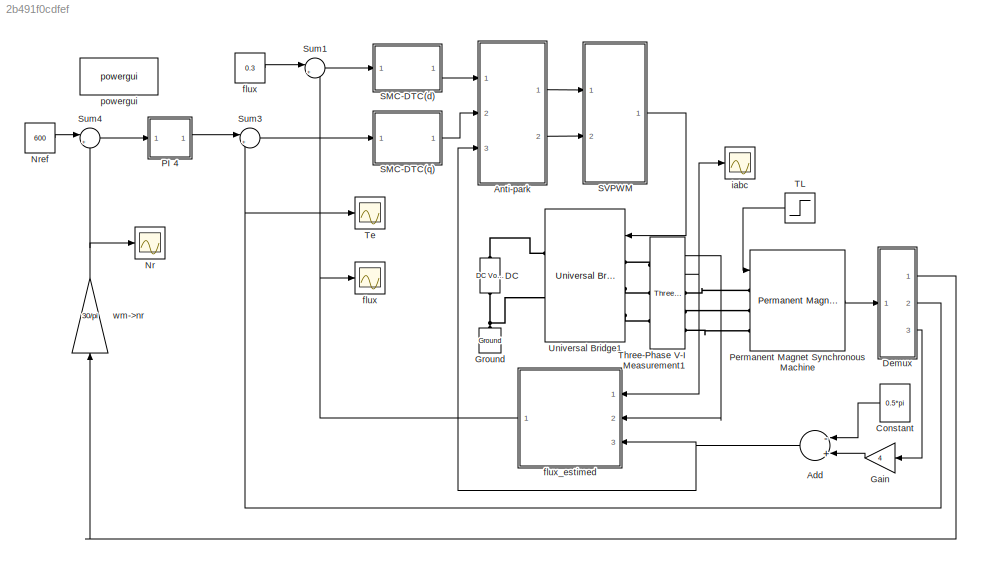
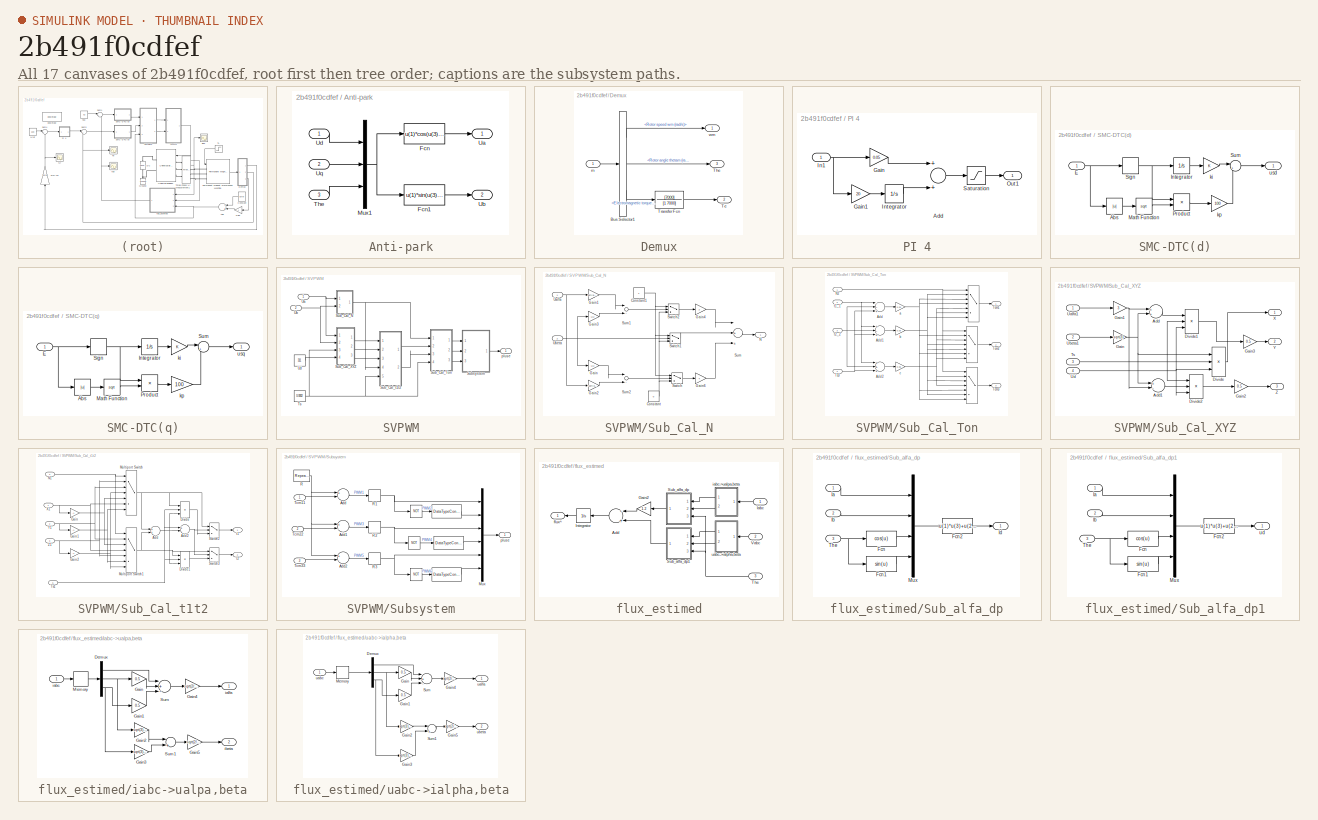
[diagram: thumbnail index - all 17 canvases of the model, root first then tree order]
MODEL slx_2b491f0cdfef
KIND model
BLOCK [Sum] Add
  InputSameDT = off
  Inputs = -+
  OutDataTypeStr = Inherit: Inherit via internal rule
  Ports = [2, 1]
  SaturateOnIntegerOverflow = off
BLOCK [SubSystem] Anti-park
  Ports = [3, 2]
  RequestExecContextInheritance = off
BLOCK [Fcn] Anti-park/Fcn
  Expr = u(1)*cos(u(3))-u(2)*sin(u(3))
BLOCK [Fcn] Anti-park/Fcn1
  Expr = u(1)*sin(u(3))+u(2)*cos(u(3))
BLOCK [Mux] Anti-park/Mux1
  DisplayOption = bar
  Inputs = 3
  Ports = [3, 1]
BLOCK [Inport] Anti-park/The
  IconDisplay = Port number
  Port = 3
BLOCK [Outport] Anti-park/Ua
  IconDisplay = Port number
BLOCK [Outport] Anti-park/Ub
  IconDisplay = Port number
  Port = 2
BLOCK [Inport] Anti-park/Ud
  IconDisplay = Port number
BLOCK [Inport] Anti-park/Uq
  IconDisplay = Port number
  Port = 2
BLOCK [Constant] Constant
  Value = 0.5*pi
BLOCK [Reference] DC  REF=powerlib/Electrical
Sources/DC Voltage Source
  Amplitude = 311
  Measurements = None
  Ports = [0, 0, 0, 0, 0, 1, 1]
  SourceBlock = powerlib/Electrical\nSources/DC Voltage Source
  SourceType = DC Voltage Source
BLOCK [SubSystem] Demux
  Ports = [1, 3]
  RequestExecContextInheritance = off
BLOCK [BusSelector] Demux/Bus Selector1
  OutputSignals = Rotor speed wm (rad/s),Rotor angle thetam (rad),Electromagnetic torque Te (N*m)
  Ports = [1, 3]
BLOCK [Outport] Demux/Te
  IconDisplay = Port number
  Port = 2
BLOCK [Outport] Demux/The
  IconDisplay = Port number
  Port = 3
BLOCK [TransferFcn] Demux/Transfer Fcn
  Denominator = [1 7000]
  Numerator = [7000]
BLOCK [Inport] Demux/m
  IconDisplay = Port number
BLOCK [Outport] Demux/wm
  IconDisplay = Port number
BLOCK [Gain] Gain
  Gain = 4
  OutDataTypeStr = Inherit: Inherit via internal rule
  ParamDataTypeStr = Inherit: Inherit via internal rule
  SaturateOnIntegerOverflow = off
BLOCK [Reference] Ground  REF=powerlib/Elements/Ground
  LConnTagsString = a
  Ports = [0, 0, 0, 0, 0, 1]
  SourceBlock = powerlib/Elements/Ground
  SourceType = Ground
BLOCK [Scope] Nr
  DataFormat = StructureWithTime
  Floating = off
  LimitDataPoints = off
  NumInputPorts = 1
  Ports = [1]
  SampleInput = on
  SampleTime = 0
  SaveName = wm
  SaveToWorkspace = on
  ShowLegends = off
  TickLabels = on
  TimeRange = 0.3
  YMax = 605
  YMin = 575
  ZoomMode = yonly
BLOCK [Constant] Nref
  Value = 600
BLOCK [SubSystem] PI 4
  Ports = [1, 1]
  RequestExecContextInheritance = off
BLOCK [Sum] PI 4/Add
  InputSameDT = off
  OutDataTypeStr = Inherit: Inherit via internal rule
  Ports = [2, 1]
  SaturateOnIntegerOverflow = off
BLOCK [Gain] PI 4/Gain
  Gain = 0.05
  OutDataTypeStr = Inherit: Inherit via internal rule
  ParamDataTypeStr = Inherit: Inherit via internal rule
  SaturateOnIntegerOverflow = off
BLOCK [Gain] PI 4/Gain1
  Gain = 20
  OutDataTypeStr = Inherit: Inherit via internal rule
  ParamDataTypeStr = Inherit: Inherit via internal rule
  SaturateOnIntegerOverflow = off
BLOCK [Inport] PI 4/In1
  IconDisplay = Port number
BLOCK [Integrator] PI 4/Integrator
  Ports = [1, 1]
BLOCK [Outport] PI 4/Out1
  IconDisplay = Port number
BLOCK [Saturate] PI 4/Saturation
  InputPortMap = u0
  LowerLimit = -50
  Ports = [1, 1]
  UpperLimit = 50
BLOCK [Reference] Permanent Magnet Synchronous Machine  REF=powerlib/Machines/Permanent Magnet
Synchronous Machine
  Flat = 120
  Flux = 0.175
  FluxDistribution = Sinusoidal
  Inductance = 8.5e-3
  InitialConditions = [0,0, 0,0]
  InitialConditions5ph = [0 0 0 0 0 0]
  La = 0.000835
  MachineConstant = Torque Constant (N.m / A_peak)
  MeasurementBus = off
  Mechanical = [0.0008 0 4]
  MechanicalLoad = Torque Tm
  NbPhases = 3
  PolePairs = 4
  Ports = [1, 1, 0, 0, 0, 3]
  PresetModel = No
  RefAngle = 90 degrees behind phase A axis (modified Park)
  Resistance = 1.2
  RotorType = Salient-pole
  ShowDetailedParameters = on
  SourceBlock = powerlib/Machines/Permanent Magnet\nSynchronous Machine
  SourceType = Permanent Magnet Synchronous Machine
  TorqueCst = 1.05
  TsBlock = -1
  TsPowergui = 0
  VoltageCst = 126.966
  dqInductances = [8.5e-3,8.5e-3]
BLOCK [SubSystem] SMC-DTC(d)
  Ports = [1, 1]
  RequestExecContextInheritance = off
BLOCK [Abs] SMC-DTC(d)/Abs
  SaturateOnIntegerOverflow = off
BLOCK [Inport] SMC-DTC(d)/E
  IconDisplay = Port number
BLOCK [Integrator] SMC-DTC(d)/Integrator
  Ports = [1, 1]
BLOCK [Math] SMC-DTC(d)/Math Function
  Operator = sqrt
  Ports = [1, 1]
BLOCK [Product] SMC-DTC(d)/Product
  InputSameDT = off
  OutDataTypeStr = Inherit: Inherit via internal rule
  Ports = [2, 1]
  SaturateOnIntegerOverflow = off
BLOCK [Signum] SMC-DTC(d)/Sign
BLOCK [Sum] SMC-DTC(d)/Sum
  IconShape = round
  InputSameDT = off
  Inputs = |++
  OutDataTypeStr = Inherit: Inherit via internal rule
  Ports = [2, 1]
  SaturateOnIntegerOverflow = off
BLOCK [Gain] SMC-DTC(d)/ki
  OutDataTypeStr = Inherit: Inherit via internal rule
  ParamDataTypeStr = Inherit: Inherit via internal rule
  SaturateOnIntegerOverflow = off
BLOCK [Gain] SMC-DTC(d)/kp
  Gain = 100
  OutDataTypeStr = Inherit: Inherit via internal rule
  ParamDataTypeStr = Inherit: Inherit via internal rule
  SaturateOnIntegerOverflow = off
BLOCK [Outport] SMC-DTC(d)/usd
  IconDisplay = Port number
BLOCK [SubSystem] SMC-DTC(q)
  Ports = [1, 1]
  RequestExecContextInheritance = off
BLOCK [Abs] SMC-DTC(q)/Abs
  SaturateOnIntegerOverflow = off
BLOCK [Inport] SMC-DTC(q)/E
  IconDisplay = Port number
BLOCK [Integrator] SMC-DTC(q)/Integrator
  Ports = [1, 1]
BLOCK [Math] SMC-DTC(q)/Math Function
  Operator = sqrt
  Ports = [1, 1]
BLOCK [Product] SMC-DTC(q)/Product
  InputSameDT = off
  OutDataTypeStr = Inherit: Inherit via internal rule
  Ports = [2, 1]
  SaturateOnIntegerOverflow = off
BLOCK [Signum] SMC-DTC(q)/Sign
BLOCK [Sum] SMC-DTC(q)/Sum
  IconShape = round
  InputSameDT = off
  Inputs = |++
  OutDataTypeStr = Inherit: Inherit via internal rule
  Ports = [2, 1]
  SaturateOnIntegerOverflow = off
BLOCK [Gain] SMC-DTC(q)/ki
  OutDataTypeStr = Inherit: Inherit via internal rule
  ParamDataTypeStr = Inherit: Inherit via internal rule
  SaturateOnIntegerOverflow = off
BLOCK [Gain] SMC-DTC(q)/kp
  Gain = 100
  OutDataTypeStr = Inherit: Inherit via internal rule
  ParamDataTypeStr = Inherit: Inherit via internal rule
  SaturateOnIntegerOverflow = off
BLOCK [Outport] SMC-DTC(q)/usq
  IconDisplay = Port number
BLOCK [SubSystem] SVPWM
  Ports = [2, 1]
  RequestExecContextInheritance = off
BLOCK [SubSystem] SVPWM/Sub_Cal_N
  Ports = [2, 1]
  RequestExecContextInheritance = off
BLOCK [Constant] SVPWM/Sub_Cal_N/Constant
  Value = 0
BLOCK [Constant] SVPWM/Sub_Cal_N/Constant1
BLOCK [Gain] SVPWM/Sub_Cal_N/Gain
  Gain = -1/2
  OutDataTypeStr = Inherit: Inherit via internal rule
  ParamDataTypeStr = Inherit: Inherit via internal rule
  SaturateOnIntegerOverflow = off
BLOCK [Gain] SVPWM/Sub_Cal_N/Gain1
  Gain = sqrt(3)/2
  OutDataTypeStr = Inherit: Inherit via internal rule
  ParamDataTypeStr = Inherit: Inherit via internal rule
  SaturateOnIntegerOverflow = off
BLOCK [Gain] SVPWM/Sub_Cal_N/Gain2
  Gain = -sqrt(3)/2
  OutDataTypeStr = Inherit: Inherit via internal rule
  ParamDataTypeStr = Inherit: Inherit via internal rule
  SaturateOnIntegerOverflow = off
BLOCK [Gain] SVPWM/Sub_Cal_N/Gain3
  Gain = -1/2
  OutDataTypeStr = Inherit: Inherit via internal rule
  ParamDataTypeStr = Inherit: Inherit via internal rule
  SaturateOnIntegerOverflow = off
BLOCK [Gain] SVPWM/Sub_Cal_N/Gain4
  Gain = 2
  OutDataTypeStr = Inherit: Inherit via internal rule
  ParamDataTypeStr = Inherit: Inherit via internal rule
  SaturateOnIntegerOverflow = off
BLOCK [Gain] SVPWM/Sub_Cal_N/Gain6
  Gain = 4
  OutDataTypeStr = Inherit: Inherit via internal rule
  ParamDataTypeStr = Inherit: Inherit via internal rule
  SaturateOnIntegerOverflow = off
BLOCK [Outport] SVPWM/Sub_Cal_N/N
  IconDisplay = Port number
BLOCK [Sum] SVPWM/Sub_Cal_N/Sum
  InputSameDT = off
  Inputs = |+++
  OutDataTypeStr = Inherit: Inherit via internal rule
  Ports = [3, 1]
  SaturateOnIntegerOverflow = off
BLOCK [Sum] SVPWM/Sub_Cal_N/Sum1
  InputSameDT = off
  Inputs = |++
  OutDataTypeStr = Inherit: Inherit via internal rule
  Ports = [2, 1]
  SaturateOnIntegerOverflow = off
BLOCK [Sum] SVPWM/Sub_Cal_N/Sum2
  InputSameDT = off
  Inputs = |++
  OutDataTypeStr = Inherit: Inherit via internal rule
  Ports = [2, 1]
  SaturateOnIntegerOverflow = off
BLOCK [Switch] SVPWM/Sub_Cal_N/Switch
  InputSameDT = off
  SaturateOnIntegerOverflow = off
BLOCK [Switch] SVPWM/Sub_Cal_N/Switch1
  InputSameDT = off
  SaturateOnIntegerOverflow = off
BLOCK [Switch] SVPWM/Sub_Cal_N/Switch2
  InputSameDT = off
  SaturateOnIntegerOverflow = off
BLOCK [Inport] SVPWM/Sub_Cal_N/Ualfa
  IconDisplay = Port number
BLOCK [Inport] SVPWM/Sub_Cal_N/Ubeta
  IconDisplay = Port number
  Port = 2
BLOCK [SubSystem] SVPWM/Sub_Cal_Ton
  Ports = [4, 3]
  RequestExecContextInheritance = off
BLOCK [MultiPortSwitch] SVPWM/Sub_Cal_Ton/ 
  InputSameDT = off
  Inputs = 6
  Ports = [7, 1]
  SaturateOnIntegerOverflow = off
BLOCK [MultiPortSwitch] SVPWM/Sub_Cal_Ton/  
  InputSameDT = off
  Inputs = 6
  Ports = [7, 1]
  SaturateOnIntegerOverflow = off
BLOCK [MultiPortSwitch] SVPWM/Sub_Cal_Ton/    
  InputSameDT = off
  Inputs = 6
  Ports = [7, 1]
  SaturateOnIntegerOverflow = off
BLOCK [Sum] SVPWM/Sub_Cal_Ton/Add
  InputSameDT = off
  Inputs = --+
  OutDataTypeStr = Inherit: Inherit via internal rule
  Ports = [3, 1]
  SaturateOnIntegerOverflow = off
BLOCK [Sum] SVPWM/Sub_Cal_Ton/Add1
  InputSameDT = off
  Inputs = +-+
  OutDataTypeStr = Inherit: Inherit via internal rule
  Ports = [3, 1]
  SaturateOnIntegerOverflow = off
BLOCK [Sum] SVPWM/Sub_Cal_Ton/Add2
  InputSameDT = off
  Inputs = +++
  OutDataTypeStr = Inherit: Inherit via internal rule
  Ports = [3, 1]
  SaturateOnIntegerOverflow = off
BLOCK [Inport] SVPWM/Sub_Cal_Ton/N2
  IconDisplay = Port number
BLOCK [Outport] SVPWM/Sub_Cal_Ton/Tcm1
  IconDisplay = Port number
BLOCK [Outport] SVPWM/Sub_Cal_Ton/Tcm2
  IconDisplay = Port number
  Port = 2
BLOCK [Outport] SVPWM/Sub_Cal_Ton/Tcm3
  IconDisplay = Port number
  Port = 3
BLOCK [Inport] SVPWM/Sub_Cal_Ton/Ts3
  IconDisplay = Port number
  Port = 4
BLOCK [Gain] SVPWM/Sub_Cal_Ton/a
  Gain = 0.25
  OutDataTypeStr = Inherit: Inherit via internal rule
  ParamDataTypeStr = Inherit: Inherit via internal rule
  SaturateOnIntegerOverflow = off
BLOCK [Gain] SVPWM/Sub_Cal_Ton/b
  Gain = 0.25
  OutDataTypeStr = Inherit: Inherit via internal rule
  ParamDataTypeStr = Inherit: Inherit via internal rule
  SaturateOnIntegerOverflow = off
BLOCK [Gain] SVPWM/Sub_Cal_Ton/c
  Gain = 0.25
  OutDataTypeStr = Inherit: Inherit via internal rule
  ParamDataTypeStr = Inherit: Inherit via internal rule
  SaturateOnIntegerOverflow = off
BLOCK [Inport] SVPWM/Sub_Cal_Ton/t1_1
  IconDisplay = Port number
  Port = 2
BLOCK [Inport] SVPWM/Sub_Cal_Ton/t2_2
  IconDisplay = Port number
  Port = 3
BLOCK [SubSystem] SVPWM/Sub_Cal_XYZ
  Ports = [4, 3]
  RequestExecContextInheritance = off
BLOCK [Sum] SVPWM/Sub_Cal_XYZ/Add
  InputSameDT = off
  OutDataTypeStr = Inherit: Inherit via internal rule
  Ports = [2, 1]
  SaturateOnIntegerOverflow = off
BLOCK [Sum] SVPWM/Sub_Cal_XYZ/Add1
  InputSameDT = off
  Inputs = +-
  OutDataTypeStr = Inherit: Inherit via internal rule
  Ports = [2, 1]
  SaturateOnIntegerOverflow = off
BLOCK [Product] SVPWM/Sub_Cal_XYZ/Divide
  InputSameDT = off
  Inputs = **/
  OutDataTypeStr = Inherit: Inherit via internal rule
  Ports = [3, 1]
  RndMeth = Floor
  SaturateOnIntegerOverflow = off
BLOCK [Product] SVPWM/Sub_Cal_XYZ/Divide1
  InputSameDT = off
  Inputs = **/
  OutDataTypeStr = Inherit: Inherit via internal rule
  Ports = [3, 1]
  RndMeth = Floor
  SaturateOnIntegerOverflow = off
BLOCK [Product] SVPWM/Sub_Cal_XYZ/Divide2
  InputSameDT = off
  Inputs = **/
  OutDataTypeStr = Inherit: Inherit via internal rule
  Ports = [3, 1]
  RndMeth = Floor
  SaturateOnIntegerOverflow = off
BLOCK [Gain] SVPWM/Sub_Cal_XYZ/Gain
  Gain = sqrt(3)
  OutDataTypeStr = Inherit: Inherit via internal rule
  ParamDataTypeStr = Inherit: Inherit via internal rule
  SaturateOnIntegerOverflow = off
BLOCK [Gain] SVPWM/Sub_Cal_XYZ/Gain1
  Gain = 3
  OutDataTypeStr = Inherit: Inherit via internal rule
  ParamDataTypeStr = Inherit: Inherit via internal rule
  SaturateOnIntegerOverflow = off
BLOCK [Gain] SVPWM/Sub_Cal_XYZ/Gain2
  Gain = 0.5
  OutDataTypeStr = Inherit: Inherit via internal rule
  ParamDataTypeStr = Inherit: Inherit via internal rule
  SaturateOnIntegerOverflow = off
BLOCK [Gain] SVPWM/Sub_Cal_XYZ/Gain3
  Gain = 0.5
  OutDataTypeStr = Inherit: Inherit via internal rule
  ParamDataTypeStr = Inherit: Inherit via internal rule
  SaturateOnIntegerOverflow = off
BLOCK [Inport] SVPWM/Sub_Cal_XYZ/Ts
  IconDisplay = Port number
  Port = 3
BLOCK [Inport] SVPWM/Sub_Cal_XYZ/Ualfa1
  IconDisplay = Port number
BLOCK [Inport] SVPWM/Sub_Cal_XYZ/Ubeta1
  IconDisplay = Port number
  Port = 2
BLOCK [Inport] SVPWM/Sub_Cal_XYZ/Ud
  IconDisplay = Port number
  Port = 4
BLOCK [Outport] SVPWM/Sub_Cal_XYZ/X
  IconDisplay = Port number
BLOCK [Outport] SVPWM/Sub_Cal_XYZ/Y
  IconDisplay = Port number
  Port = 2
BLOCK [Outport] SVPWM/Sub_Cal_XYZ/Z
  IconDisplay = Port number
  Port = 3
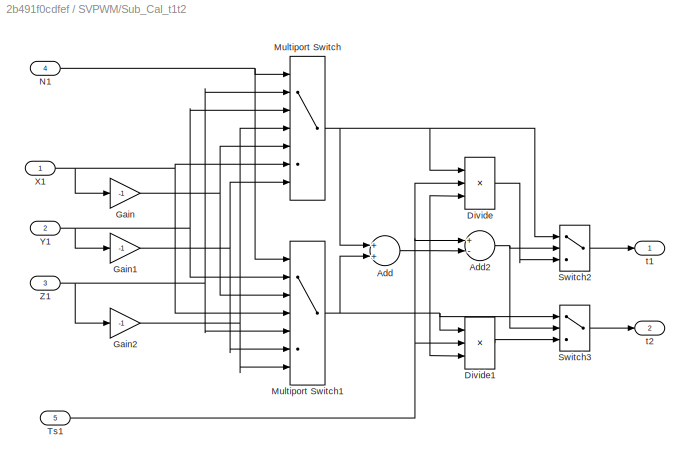
BLOCK [SubSystem] SVPWM/Sub_Cal_t1t2
  Ports = [5, 2]
  RequestExecContextInheritance = off
BLOCK [Sum] SVPWM/Sub_Cal_t1t2/Add
  InputSameDT = off
  OutDataTypeStr = Inherit: Inherit via internal rule
  Ports = [2, 1]
  SaturateOnIntegerOverflow = off
BLOCK [Sum] SVPWM/Sub_Cal_t1t2/Add2
  InputSameDT = off
  Inputs = +-
  OutDataTypeStr = Inherit: Inherit via internal rule
  Ports = [2, 1]
  SaturateOnIntegerOverflow = off
BLOCK [Product] SVPWM/Sub_Cal_t1t2/Divide
  InputSameDT = off
  Inputs = **/
  OutDataTypeStr = Inherit: Inherit via internal rule
  Ports = [3, 1]
  RndMeth = Floor
  SaturateOnIntegerOverflow = off
BLOCK [Product] SVPWM/Sub_Cal_t1t2/Divide1
  InputSameDT = off
  Inputs = **/
  OutDataTypeStr = Inherit: Inherit via internal rule
  Ports = [3, 1]
  RndMeth = Floor
  SaturateOnIntegerOverflow = off
BLOCK [Gain] SVPWM/Sub_Cal_t1t2/Gain
  Gain = -1
  OutDataTypeStr = Inherit: Inherit via internal rule
  ParamDataTypeStr = Inherit: Inherit via internal rule
  SaturateOnIntegerOverflow = off
BLOCK [Gain] SVPWM/Sub_Cal_t1t2/Gain1
  Gain = -1
  OutDataTypeStr = Inherit: Inherit via internal rule
  ParamDataTypeStr = Inherit: Inherit via internal rule
  SaturateOnIntegerOverflow = off
BLOCK [Gain] SVPWM/Sub_Cal_t1t2/Gain2
  Gain = -1
  OutDataTypeStr = Inherit: Inherit via internal rule
  ParamDataTypeStr = Inherit: Inherit via internal rule
  SaturateOnIntegerOverflow = off
BLOCK [MultiPortSwitch] SVPWM/Sub_Cal_t1t2/Multiport Switch
  InputSameDT = off
  Inputs = 6
  Ports = [7, 1]
  SaturateOnIntegerOverflow = off
BLOCK [MultiPortSwitch] SVPWM/Sub_Cal_t1t2/Multiport Switch1
  InputSameDT = off
  Inputs = 6
  Ports = [7, 1]
  SaturateOnIntegerOverflow = off
BLOCK [Inport] SVPWM/Sub_Cal_t1t2/N1
  IconDisplay = Port number
  Port = 4
BLOCK [Switch] SVPWM/Sub_Cal_t1t2/Switch2
  InputSameDT = off
  SaturateOnIntegerOverflow = off
BLOCK [Switch] SVPWM/Sub_Cal_t1t2/Switch3
  InputSameDT = off
  SaturateOnIntegerOverflow = off
BLOCK [Inport] SVPWM/Sub_Cal_t1t2/Ts1
  IconDisplay = Port number
  Port = 5
BLOCK [Inport] SVPWM/Sub_Cal_t1t2/X1
  IconDisplay = Port number
BLOCK [Inport] SVPWM/Sub_Cal_t1t2/Y1
  IconDisplay = Port number
  Port = 2
BLOCK [Inport] SVPWM/Sub_Cal_t1t2/Z1
  IconDisplay = Port number
  Port = 3
BLOCK [Outport] SVPWM/Sub_Cal_t1t2/t1
  IconDisplay = Port number
BLOCK [Outport] SVPWM/Sub_Cal_t1t2/t2
  IconDisplay = Port number
  Port = 2
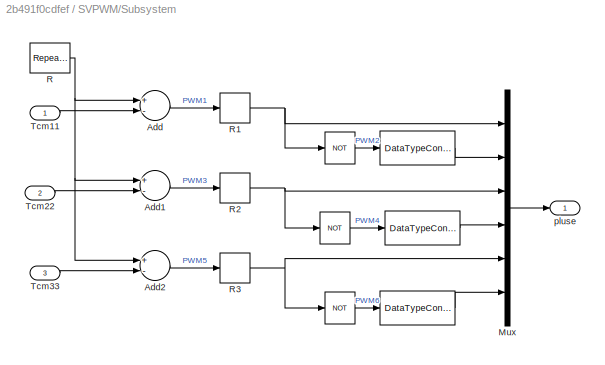
BLOCK [SubSystem] SVPWM/Subsystem
  Ports = [3, 1]
  RequestExecContextInheritance = off
BLOCK [Logic] SVPWM/Subsystem/ 
  AllPortsSameDT = off
  Operator = NOT
  OutDataTypeStr = boolean
  Ports = [1, 1]
BLOCK [DataTypeConversion] SVPWM/Subsystem/  
  OutDataTypeStr = double
  RndMeth = Floor
  SaturateOnIntegerOverflow = off
BLOCK [Logic] SVPWM/Subsystem/   
  AllPortsSameDT = off
  Operator = NOT
  OutDataTypeStr = boolean
  Ports = [1, 1]
BLOCK [DataTypeConversion] SVPWM/Subsystem/     
  OutDataTypeStr = double
  RndMeth = Floor
  SaturateOnIntegerOverflow = off
BLOCK [Logic] SVPWM/Subsystem/       
  AllPortsSameDT = off
  Operator = NOT
  OutDataTypeStr = boolean
  Ports = [1, 1]
BLOCK [DataTypeConversion] SVPWM/Subsystem/         
  OutDataTypeStr = double
  RndMeth = Floor
  SaturateOnIntegerOverflow = off
BLOCK [Sum] SVPWM/Subsystem/Add
  InputSameDT = off
  Inputs = +-
  OutDataTypeStr = Inherit: Inherit via internal rule
  Ports = [2, 1]
  SaturateOnIntegerOverflow = off
BLOCK [Sum] SVPWM/Subsystem/Add1
  InputSameDT = off
  Inputs = +-
  OutDataTypeStr = Inherit: Inherit via internal rule
  Ports = [2, 1]
  SaturateOnIntegerOverflow = off
BLOCK [Sum] SVPWM/Subsystem/Add2
  InputSameDT = off
  Inputs = +-
  OutDataTypeStr = Inherit: Inherit via internal rule
  Ports = [2, 1]
  SaturateOnIntegerOverflow = off
BLOCK [Mux] SVPWM/Subsystem/Mux
  DisplayOption = bar
  Inputs = 6
  Ports = [6, 1]
BLOCK [Reference] SVPWM/Subsystem/R  REF=simulink/Sources/Repeating
Sequence
  Ports = [0, 1]
  SourceBlock = simulink/Sources/Repeating\nSequence
  SourceType = Repeating table
  rep_seq_t = [0  0.0001  0.0002]
  rep_seq_y = [0  0.0001  0]
BLOCK [Relay] SVPWM/Subsystem/R1
BLOCK [Relay] SVPWM/Subsystem/R2
BLOCK [Relay] SVPWM/Subsystem/R3
BLOCK [Inport] SVPWM/Subsystem/Tcm11
  IconDisplay = Port number
BLOCK [Inport] SVPWM/Subsystem/Tcm22
  IconDisplay = Port number
  Port = 2
BLOCK [Inport] SVPWM/Subsystem/Tcm33
  IconDisplay = Port number
  Port = 3
BLOCK [Outport] SVPWM/Subsystem/pluse
  IconDisplay = Port number
BLOCK [Constant] SVPWM/Ts
  Value = 0.0002
BLOCK [Inport] SVPWM/Ua
  IconDisplay = Port number
BLOCK [Inport] SVPWM/Ub
  IconDisplay = Port number
  Port = 2
BLOCK [Constant] SVPWM/Ud
  Value = 311
BLOCK [Outport] SVPWM/pluse
  IconDisplay = Port number
BLOCK [Sum] Sum1
  IconShape = round
  InputSameDT = off
  Inputs = |+-
  OutDataTypeStr = Inherit: Inherit via internal rule
  Ports = [2, 1]
  SaturateOnIntegerOverflow = off
BLOCK [Sum] Sum3
  IconShape = round
  InputSameDT = off
  Inputs = |+-
  OutDataTypeStr = Inherit: Inherit via internal rule
  Ports = [2, 1]
  SaturateOnIntegerOverflow = off
BLOCK [Sum] Sum4
  IconShape = round
  InputSameDT = off
  Inputs = |+-
  OutDataTypeStr = Inherit: Inherit via internal rule
  Ports = [2, 1]
  SaturateOnIntegerOverflow = off
BLOCK [Step] TL
  After = 1.5
  SampleTime = 0
  Time = 0.2
BLOCK [Scope] Te
  DataFormat = StructureWithTime
  Floating = off
  LimitDataPoints = off
  NumInputPorts = 1
  Ports = [1]
  SampleInput = on
  SampleTime = 0
  SaveName = te
  SaveToWorkspace = on
  ShowLegends = off
  TickLabels = on
  TimeRange = 0.35
  YMax = 1.6
  YMin = 1.35
  ZoomMode = yonly
BLOCK [Reference] Three-Phase V-I Measurement1  REF=powerlib/Measurements/Three-Phase
V-I Measurement
  CurrentMeasurement = yes
  Ipu = off
  LabelI = Iabc
  LabelV = Vabc
  OutputType = Complex
  PSBequivalent = 0
  Pbase = 100e6
  PhasorSimulation = off
  Ports = [0, 2, 0, 0, 0, 3, 3]
  SetLabelI = off
  SetLabelV = off
  SourceBlock = powerlib/Measurements/Three-Phase\nV-I Measurement
  SourceType = Three-Phase VI Measurement
  Vbase = 500e3
  VoltageMeasurement = phase-to-ground
  Vpu = off
  VpuLL = off
BLOCK [Reference] Universal Bridge1  REF=powerlib/Power
Electronics/Universal Bridge
  Arms = 3
  Device = IGBT / Diodes
  ForwardVoltage = 0
  ForwardVoltages = [  0  0  ]
  GTOparameters = [ 10e-6 , 20e-6 ]
  IGBTparameters = [ 1e-6 , 2e-6 ]
  Lon = 0
  Measurements = None
  Measurements_2 = None
  Ports = [1, 0, 0, 0, 0, 3, 2]
  Ron = 1e-3
  SnubberCapacitance = inf
  SnubberResistance = 1e5
  SourceBlock = powerlib/Power\nElectronics/Universal Bridge
  SourceType = Universal Bridge
  converterType = Rectifier
BLOCK [Scope] flux
  DataFormat = StructureWithTime
  Floating = off
  LimitDataPoints = off
  NumInputPorts = 1
  Ports = [1]
  SampleInput = on
  SampleTime = 0
  SaveName = flux
  SaveToWorkspace = on
  ShowLegends = off
  TickLabels = on
  TimeRange = 0.4
  YMax = 0.32
  YMin = 0.18
  ZoomMode = yonly
BLOCK [Constant] flux 
  Value = 0.3
BLOCK [SubSystem] flux_estimed
  Ports = [3, 1]
  RequestExecContextInheritance = off
BLOCK [Sum] flux_estimed/Add
  InputSameDT = off
  Inputs = -+
  OutDataTypeStr = Inherit: Inherit via internal rule
  Ports = [2, 1]
  SaturateOnIntegerOverflow = off
BLOCK [Gain] flux_estimed/Gain2
  Gain = 1.2
  OutDataTypeStr = Inherit: Inherit via internal rule
  ParamDataTypeStr = Inherit: Inherit via internal rule
  SaturateOnIntegerOverflow = off
BLOCK [Inport] flux_estimed/Iabc
  IconDisplay = Port number
BLOCK [Integrator] flux_estimed/Integrator
  Ports = [1, 1]
BLOCK [SubSystem] flux_estimed/Sub_alfa_dp
  Ports = [3, 1]
  RequestExecContextInheritance = off
BLOCK [Fcn] flux_estimed/Sub_alfa_dp/Fcn
  Expr = cos(u)
BLOCK [Fcn] flux_estimed/Sub_alfa_dp/Fcn1
  Expr = sin(u)
BLOCK [Fcn] flux_estimed/Sub_alfa_dp/Fcn2
  Expr = u(1)*u(3)+u(2)*u(4)
BLOCK [Inport] flux_estimed/Sub_alfa_dp/Ia
  IconDisplay = Port number
BLOCK [Inport] flux_estimed/Sub_alfa_dp/Ib
  IconDisplay = Port number
  Port = 2
BLOCK [Outport] flux_estimed/Sub_alfa_dp/Id
  IconDisplay = Port number
BLOCK [Mux] flux_estimed/Sub_alfa_dp/Mux
  DisplayOption = bar
  Ports = [4, 1]
BLOCK [Inport] flux_estimed/Sub_alfa_dp/The
  IconDisplay = Port number
  Port = 3
BLOCK [SubSystem] flux_estimed/Sub_alfa_dp1
  Ports = [3, 1]
  RequestExecContextInheritance = off
BLOCK [Fcn] flux_estimed/Sub_alfa_dp1/Fcn
  Expr = cos(u)
BLOCK [Fcn] flux_estimed/Sub_alfa_dp1/Fcn1
  Expr = sin(u)
BLOCK [Fcn] flux_estimed/Sub_alfa_dp1/Fcn2
  Expr = u(1)*u(3)+u(2)*u(4)
BLOCK [Inport] flux_estimed/Sub_alfa_dp1/Ia
  IconDisplay = Port number
BLOCK [Inport] flux_estimed/Sub_alfa_dp1/Ib
  IconDisplay = Port number
  Port = 2
BLOCK [Mux] flux_estimed/Sub_alfa_dp1/Mux
  DisplayOption = bar
  Ports = [4, 1]
BLOCK [Inport] flux_estimed/Sub_alfa_dp1/The
  IconDisplay = Port number
  Port = 3
BLOCK [Outport] flux_estimed/Sub_alfa_dp1/ud
  IconDisplay = Port number
BLOCK [Inport] flux_estimed/The
  IconDisplay = Port number
  Port = 3
BLOCK [Inport] flux_estimed/Vabc
  IconDisplay = Port number
  Port = 2
BLOCK [Outport] flux_estimed/flux^
  IconDisplay = Port number
BLOCK [SubSystem] flux_estimed/iabc->ualpa,beta
  Ports = [1, 2]
  RequestExecContextInheritance = off
BLOCK [Demux] flux_estimed/iabc->ualpa,beta/Demux
  DisplayOption = bar
  Outputs = 3
  Ports = [1, 3]
BLOCK [Gain] flux_estimed/iabc->ualpa,beta/Gain
  Gain = 0.5
  OutDataTypeStr = Inherit: Inherit via internal rule
  ParamDataTypeStr = Inherit: Inherit via internal rule
  SaturateOnIntegerOverflow = off
BLOCK [Gain] flux_estimed/iabc->ualpa,beta/Gain1
  Gain = 0.5
  OutDataTypeStr = Inherit: Inherit via internal rule
  ParamDataTypeStr = Inherit: Inherit via internal rule
  SaturateOnIntegerOverflow = off
BLOCK [Gain] flux_estimed/iabc->ualpa,beta/Gain2
  Gain = sqrt(3)/2
  OutDataTypeStr = Inherit: Inherit via internal rule
  ParamDataTypeStr = Inherit: Inherit via internal rule
  SaturateOnIntegerOverflow = off
BLOCK [Gain] flux_estimed/iabc->ualpa,beta/Gain3
  Gain = sqrt(3)/2
  OutDataTypeStr = Inherit: Inherit via internal rule
  ParamDataTypeStr = Inherit: Inherit via internal rule
  SaturateOnIntegerOverflow = off
BLOCK [Gain] flux_estimed/iabc->ualpa,beta/Gain4
  Gain = sqrt(2/3)
  OutDataTypeStr = Inherit: Inherit via internal rule
  ParamDataTypeStr = Inherit: Inherit via internal rule
  SaturateOnIntegerOverflow = off
BLOCK [Gain] flux_estimed/iabc->ualpa,beta/Gain5
  Gain = sqrt(2/3)
  OutDataTypeStr = Inherit: Inherit via internal rule
  ParamDataTypeStr = Inherit: Inherit via internal rule
  SaturateOnIntegerOverflow = off
BLOCK [Memory] flux_estimed/iabc->ualpa,beta/Memory
BLOCK [Sum] flux_estimed/iabc->ualpa,beta/Sum
  InputSameDT = off
  Inputs = |+--
  OutDataTypeStr = Inherit: Inherit via internal rule
  Ports = [3, 1]
  SaturateOnIntegerOverflow = off
BLOCK [Sum] flux_estimed/iabc->ualpa,beta/Sum1
  InputSameDT = off
  Inputs = |+-
  OutDataTypeStr = Inherit: Inherit via internal rule
  Ports = [2, 1]
  SaturateOnIntegerOverflow = off
BLOCK [Inport] flux_estimed/iabc->ualpa,beta/iabc
  IconDisplay = Port number
BLOCK [Outport] flux_estimed/iabc->ualpa,beta/ialfa
  IconDisplay = Port number
BLOCK [Outport] flux_estimed/iabc->ualpa,beta/ibeta
  IconDisplay = Port number
  Port = 2
BLOCK [SubSystem] flux_estimed/uabc->ialpha,beta
  Ports = [1, 2]
  RequestExecContextInheritance = off
BLOCK [Demux] flux_estimed/uabc->ialpha,beta/Demux
  DisplayOption = bar
  Outputs = 3
  Ports = [1, 3]
BLOCK [Gain] flux_estimed/uabc->ialpha,beta/Gain
  Gain = 0.5
  OutDataTypeStr = Inherit: Inherit via internal rule
  ParamDataTypeStr = Inherit: Inherit via internal rule
  SaturateOnIntegerOverflow = off
BLOCK [Gain] flux_estimed/uabc->ialpha,beta/Gain1
  Gain = 0.5
  OutDataTypeStr = Inherit: Inherit via internal rule
  ParamDataTypeStr = Inherit: Inherit via internal rule
  SaturateOnIntegerOverflow = off
BLOCK [Gain] flux_estimed/uabc->ialpha,beta/Gain2
  Gain = sqrt(3)/2
  OutDataTypeStr = Inherit: Inherit via internal rule
  ParamDataTypeStr = Inherit: Inherit via internal rule
  SaturateOnIntegerOverflow = off
BLOCK [Gain] flux_estimed/uabc->ialpha,beta/Gain3
  Gain = sqrt(3)/2
  OutDataTypeStr = Inherit: Inherit via internal rule
  ParamDataTypeStr = Inherit: Inherit via internal rule
  SaturateOnIntegerOverflow = off
BLOCK [Gain] flux_estimed/uabc->ialpha,beta/Gain4
  Gain = sqrt(2/3)
  OutDataTypeStr = Inherit: Inherit via internal rule
  ParamDataTypeStr = Inherit: Inherit via internal rule
  SaturateOnIntegerOverflow = off
BLOCK [Gain] flux_estimed/uabc->ialpha,beta/Gain5
  Gain = sqrt(2/3)
  OutDataTypeStr = Inherit: Inherit via internal rule
  ParamDataTypeStr = Inherit: Inherit via internal rule
  SaturateOnIntegerOverflow = off
BLOCK [Memory] flux_estimed/uabc->ialpha,beta/Memory
BLOCK [Sum] flux_estimed/uabc->ialpha,beta/Sum
  InputSameDT = off
  Inputs = |+--
  OutDataTypeStr = Inherit: Inherit via internal rule
  Ports = [3, 1]
  SaturateOnIntegerOverflow = off
BLOCK [Sum] flux_estimed/uabc->ialpha,beta/Sum1
  InputSameDT = off
  Inputs = |+-
  OutDataTypeStr = Inherit: Inherit via internal rule
  Ports = [2, 1]
  SaturateOnIntegerOverflow = off
BLOCK [Inport] flux_estimed/uabc->ialpha,beta/uabc
  IconDisplay = Port number
BLOCK [Outport] flux_estimed/uabc->ialpha,beta/ualfa
  IconDisplay = Port number
BLOCK [Outport] flux_estimed/uabc->ialpha,beta/ubeta
  IconDisplay = Port number
  Port = 2
BLOCK [Scope] iabc
  DataFormat = StructureWithTime
  Floating = off
  LimitDataPoints = off
  NumInputPorts = 1
  Ports = [1]
  SampleInput = on
  SampleTime = 0
  SaveName = iabc
  SaveToWorkspace = on
  ShowLegends = off
  TickLabels = on
  TimeRange = 0.3
  YMax = 80
  YMin = -60
  ZoomMode = yonly
BLOCK [Reference] powergui  REF=powerlib/powergui
  DisableRonSwitches = off
  DisableSnubberDevices = off
  DisableVfSwitches = off
  DisplayEquations = off
  DisplayStyle = 1
  EnableUseOfTLC = off
  ErrMax = 1e-4
  Frange = [0:2:500]
  FreqAxis = off
  FunctionMessages = off
  HookPort = off
  Interpol = off
  Iterations = 50
  MaxFrequency = 1000
  Pbase = 100e6
  Ports = []
  ResistiveCurrentMeasurement = off
  RestoreLinks = warning
  RmsSteady = 1
  SPID = off
  SampleTime = 50e-6
  ShowGrid = off
  SolverType = Tustin/Backward Euler (TBE)
  SourceBlock = powerlib/powergui
  SourceType = PSB option menu block
  StartTime = 0.0
  SwTol = 0
  Ts = 0
  UnitsV = kV
  UnitsW = MW
  UserDataPersistent = on
  Xlog = on
  Ylog = off
  ZoomFFT = on
  cycles = 1
  display = off
  echomessages = off
  frequency = 60
  frequencyindice = 0
  frequencyindicesteady = 1
  fundamental = 60
  methode = off
  save = off
  structure = 0
  variable = ZData
  x0status = blocks
BLOCK [Gain] wm->nr
  Gain = 30/pi
  OutDataTypeStr = Inherit: Inherit via internal rule
  ParamDataTypeStr = Inherit: Inherit via internal rule
  SaturateOnIntegerOverflow = off
NET Add:1 -> Anti-park:3, flux_estimed:3
LINE Anti-park/Fcn1:1 -> Anti-park/Ub:1
LINE Anti-park/Fcn:1 -> Anti-park/Ua:1
NET Anti-park/Mux1:1 -> Anti-park/Fcn1:1, Anti-park/Fcn:1
LINE Anti-park/The:1 -> Anti-park/Mux1:3
LINE Anti-park/Ud:1 -> Anti-park/Mux1:1
LINE Anti-park/Uq:1 -> Anti-park/Mux1:2
LINE Anti-park:1 -> SVPWM:1
LINE Anti-park:2 -> SVPWM:2
LINE Constant:1 -> Add:1
LINE Demux/Bus Selector1:1 -> Demux/wm:1
LINE Demux/Bus Selector1:2 -> Demux/The:1
LINE Demux/Bus Selector1:3 -> Demux/Transfer Fcn:1
LINE Demux/Transfer Fcn:1 -> Demux/Te:1
LINE Demux/m:1 -> Demux/Bus Selector1:1
LINE Demux:1 -> wm->nr:1
NET Demux:2 -> Sum3:2, Te:1
LINE Demux:3 -> Gain:1
LINE Gain:1 -> Add:2
LINE Nref:1 -> Sum4:1
LINE PI 4/Add:1 -> PI 4/Saturation:1
LINE PI 4/Gain1:1 -> PI 4/Integrator:1
LINE PI 4/Gain:1 -> PI 4/Add:1
NET PI 4/In1:1 -> PI 4/Gain1:1, PI 4/Gain:1
LINE PI 4/Integrator:1 -> PI 4/Add:2
LINE PI 4/Saturation:1 -> PI 4/Out1:1
LINE PI 4:1 -> Sum3:1
LINE Permanent Magnet Synchronous Machine:1 -> Demux:1
LINE SMC-DTC(d)/Abs:1 -> SMC-DTC(d)/Math Function:1
NET SMC-DTC(d)/E:1 -> SMC-DTC(d)/Abs:1, SMC-DTC(d)/Sign:1
LINE SMC-DTC(d)/Integrator:1 -> SMC-DTC(d)/ki:1
LINE SMC-DTC(d)/Math Function:1 -> SMC-DTC(d)/Product:2
LINE SMC-DTC(d)/Product:1 -> SMC-DTC(d)/kp:1
NET SMC-DTC(d)/Sign:1 -> SMC-DTC(d)/Integrator:1, SMC-DTC(d)/Product:1
LINE SMC-DTC(d)/Sum:1 -> SMC-DTC(d)/usd:1
LINE SMC-DTC(d)/ki:1 -> SMC-DTC(d)/Sum:1
LINE SMC-DTC(d)/kp:1 -> SMC-DTC(d)/Sum:2
LINE SMC-DTC(d):1 -> Anti-park:1
LINE SMC-DTC(q)/Abs:1 -> SMC-DTC(q)/Math Function:1
NET SMC-DTC(q)/E:1 -> SMC-DTC(q)/Abs:1, SMC-DTC(q)/Sign:1
LINE SMC-DTC(q)/Integrator:1 -> SMC-DTC(q)/ki:1
LINE SMC-DTC(q)/Math Function:1 -> SMC-DTC(q)/Product:2
LINE SMC-DTC(q)/Product:1 -> SMC-DTC(q)/kp:1
NET SMC-DTC(q)/Sign:1 -> SMC-DTC(q)/Integrator:1, SMC-DTC(q)/Product:1
LINE SMC-DTC(q)/Sum:1 -> SMC-DTC(q)/usq:1
LINE SMC-DTC(q)/ki:1 -> SMC-DTC(q)/Sum:1
LINE SMC-DTC(q)/kp:1 -> SMC-DTC(q)/Sum:2
LINE SMC-DTC(q):1 -> Anti-park:2
NET SVPWM/Sub_Cal_N/Constant1:1 -> SVPWM/Sub_Cal_N/Switch1:1, SVPWM/Sub_Cal_N/Switch2:1, SVPWM/Sub_Cal_N/Switch:1
NET SVPWM/Sub_Cal_N/Constant:1 -> SVPWM/Sub_Cal_N/Switch1:3, SVPWM/Sub_Cal_N/Switch2:3, SVPWM/Sub_Cal_N/Switch:3
LINE SVPWM/Sub_Cal_N/Gain1:1 -> SVPWM/Sub_Cal_N/Sum1:1
LINE SVPWM/Sub_Cal_N/Gain2:1 -> SVPWM/Sub_Cal_N/Sum2:2
LINE SVPWM/Sub_Cal_N/Gain3:1 -> SVPWM/Sub_Cal_N/Sum1:2
LINE SVPWM/Sub_Cal_N/Gain4:1 -> SVPWM/Sub_Cal_N/Sum:1
LINE SVPWM/Sub_Cal_N/Gain6:1 -> SVPWM/Sub_Cal_N/Sum:3
LINE SVPWM/Sub_Cal_N/Gain:1 -> SVPWM/Sub_Cal_N/Sum2:1
LINE SVPWM/Sub_Cal_N/Sum1:1 -> SVPWM/Sub_Cal_N/Switch2:2
LINE SVPWM/Sub_Cal_N/Sum2:1 -> SVPWM/Sub_Cal_N/Switch:2
LINE SVPWM/Sub_Cal_N/Sum:1 -> SVPWM/Sub_Cal_N/N:1
LINE SVPWM/Sub_Cal_N/Switch1:1 -> SVPWM/Sub_Cal_N/Sum:2
LINE SVPWM/Sub_Cal_N/Switch2:1 -> SVPWM/Sub_Cal_N/Gain4:1
LINE SVPWM/Sub_Cal_N/Switch:1 -> SVPWM/Sub_Cal_N/Gain6:1
NET SVPWM/Sub_Cal_N/Ualfa:1 -> SVPWM/Sub_Cal_N/Gain1:1, SVPWM/Sub_Cal_N/Gain2:1
NET SVPWM/Sub_Cal_N/Ubeta:1 -> SVPWM/Sub_Cal_N/Gain3:1, SVPWM/Sub_Cal_N/Gain:1, SVPWM/Sub_Cal_N/Switch1:2
NET SVPWM/Sub_Cal_N:1 -> SVPWM/Sub_Cal_Ton:1, SVPWM/Sub_Cal_t1t2:4
LINE SVPWM/Sub_Cal_Ton/    :1 -> SVPWM/Sub_Cal_Ton/Tcm3:1
LINE SVPWM/Sub_Cal_Ton/  :1 -> SVPWM/Sub_Cal_Ton/Tcm1:1
LINE SVPWM/Sub_Cal_Ton/ :1 -> SVPWM/Sub_Cal_Ton/Tcm2:1
LINE SVPWM/Sub_Cal_Ton/Add1:1 -> SVPWM/Sub_Cal_Ton/b:1
LINE SVPWM/Sub_Cal_Ton/Add2:1 -> SVPWM/Sub_Cal_Ton/c:1
LINE SVPWM/Sub_Cal_Ton/Add:1 -> SVPWM/Sub_Cal_Ton/a:1
NET SVPWM/Sub_Cal_Ton/N2:1 -> SVPWM/Sub_Cal_Ton/    :1, SVPWM/Sub_Cal_Ton/  :1, SVPWM/Sub_Cal_Ton/ :1
NET SVPWM/Sub_Cal_Ton/Ts3:1 -> SVPWM/Sub_Cal_Ton/Add1:3, SVPWM/Sub_Cal_Ton/Add2:3, SVPWM/Sub_Cal_Ton/Add:3
NET SVPWM/Sub_Cal_Ton/a:1 -> SVPWM/Sub_Cal_Ton/    :5, SVPWM/Sub_Cal_Ton/    :7, SVPWM/Sub_Cal_Ton/  :3, SVPWM/Sub_Cal_Ton/  :4, SVPWM/Sub_Cal_Ton/ :2, SVPWM/Sub_Cal_Ton/ :6
NET SVPWM/Sub_Cal_Ton/b:1 -> SVPWM/Sub_Cal_Ton/    :3, SVPWM/Sub_Cal_Ton/    :6, SVPWM/Sub_Cal_Ton/  :2, SVPWM/Sub_Cal_Ton/  :7, SVPWM/Sub_Cal_Ton/ :4, SVPWM/Sub_Cal_Ton/ :5
NET SVPWM/Sub_Cal_Ton/c:1 -> SVPWM/Sub_Cal_Ton/    :2, SVPWM/Sub_Cal_Ton/    :4, SVPWM/Sub_Cal_Ton/  :5, SVPWM/Sub_Cal_Ton/  :6, SVPWM/Sub_Cal_Ton/ :3, SVPWM/Sub_Cal_Ton/ :7
NET SVPWM/Sub_Cal_Ton/t1_1:1 -> SVPWM/Sub_Cal_Ton/Add1:1, SVPWM/Sub_Cal_Ton/Add2:1, SVPWM/Sub_Cal_Ton/Add:1
NET SVPWM/Sub_Cal_Ton/t2_2:1 -> SVPWM/Sub_Cal_Ton/Add1:2, SVPWM/Sub_Cal_Ton/Add2:2, SVPWM/Sub_Cal_Ton/Add:2
LINE SVPWM/Sub_Cal_Ton:1 -> SVPWM/Subsystem:1
LINE SVPWM/Sub_Cal_Ton:2 -> SVPWM/Subsystem:2
LINE SVPWM/Sub_Cal_Ton:3 -> SVPWM/Subsystem:3
LINE SVPWM/Sub_Cal_XYZ/Add1:1 -> SVPWM/Sub_Cal_XYZ/Divide2:2
LINE SVPWM/Sub_Cal_XYZ/Add:1 -> SVPWM/Sub_Cal_XYZ/Divide1:1
LINE SVPWM/Sub_Cal_XYZ/Divide1:1 -> SVPWM/Sub_Cal_XYZ/Gain3:1
LINE SVPWM/Sub_Cal_XYZ/Divide2:1 -> SVPWM/Sub_Cal_XYZ/Gain2:1
LINE SVPWM/Sub_Cal_XYZ/Divide:1 -> SVPWM/Sub_Cal_XYZ/X:1
NET SVPWM/Sub_Cal_XYZ/Gain1:1 -> SVPWM/Sub_Cal_XYZ/Add1:2, SVPWM/Sub_Cal_XYZ/Add:1
LINE SVPWM/Sub_Cal_XYZ/Gain2:1 -> SVPWM/Sub_Cal_XYZ/Z:1
LINE SVPWM/Sub_Cal_XYZ/Gain3:1 -> SVPWM/Sub_Cal_XYZ/Y:1
NET SVPWM/Sub_Cal_XYZ/Gain:1 -> SVPWM/Sub_Cal_XYZ/Add1:1, SVPWM/Sub_Cal_XYZ/Add:2, SVPWM/Sub_Cal_XYZ/Divide:1
NET SVPWM/Sub_Cal_XYZ/Ts:1 -> SVPWM/Sub_Cal_XYZ/Divide1:2, SVPWM/Sub_Cal_XYZ/Divide2:1, SVPWM/Sub_Cal_XYZ/Divide:2
LINE SVPWM/Sub_Cal_XYZ/Ualfa1:1 -> SVPWM/Sub_Cal_XYZ/Gain1:1
LINE SVPWM/Sub_Cal_XYZ/Ubeta1:1 -> SVPWM/Sub_Cal_XYZ/Gain:1
NET SVPWM/Sub_Cal_XYZ/Ud:1 -> SVPWM/Sub_Cal_XYZ/Divide1:3, SVPWM/Sub_Cal_XYZ/Divide2:3, SVPWM/Sub_Cal_XYZ/Divide:3
LINE SVPWM/Sub_Cal_XYZ:1 -> SVPWM/Sub_Cal_t1t2:1
LINE SVPWM/Sub_Cal_XYZ:2 -> SVPWM/Sub_Cal_t1t2:2
LINE SVPWM/Sub_Cal_XYZ:3 -> SVPWM/Sub_Cal_t1t2:3
NET SVPWM/Sub_Cal_t1t2/Add2:1 -> SVPWM/Sub_Cal_t1t2/Switch2:2, SVPWM/Sub_Cal_t1t2/Switch3:2
NET SVPWM/Sub_Cal_t1t2/Add:1 -> SVPWM/Sub_Cal_t1t2/Add2:2, SVPWM/Sub_Cal_t1t2/Divide1:3, SVPWM/Sub_Cal_t1t2/Divide:3
LINE SVPWM/Sub_Cal_t1t2/Divide1:1 -> SVPWM/Sub_Cal_t1t2/Switch3:3
LINE SVPWM/Sub_Cal_t1t2/Divide:1 -> SVPWM/Sub_Cal_t1t2/Switch2:3
NET SVPWM/Sub_Cal_t1t2/Gain1:1 -> SVPWM/Sub_Cal_t1t2/Multiport Switch1:6, SVPWM/Sub_Cal_t1t2/Multiport Switch:7
NET SVPWM/Sub_Cal_t1t2/Gain2:1 -> SVPWM/Sub_Cal_t1t2/Multiport Switch1:7, SVPWM/Sub_Cal_t1t2/Multiport Switch:4
NET SVPWM/Sub_Cal_t1t2/Gain:1 -> SVPWM/Sub_Cal_t1t2/Multiport Switch1:3, SVPWM/Sub_Cal_t1t2/Multiport Switch:5
NET SVPWM/Sub_Cal_t1t2/Multiport Switch1:1 -> SVPWM/Sub_Cal_t1t2/Add:2, SVPWM/Sub_Cal_t1t2/Divide1:1, SVPWM/Sub_Cal_t1t2/Switch3:1
NET SVPWM/Sub_Cal_t1t2/Multiport Switch:1 -> SVPWM/Sub_Cal_t1t2/Add:1, SVPWM/Sub_Cal_t1t2/Divide:1, SVPWM/Sub_Cal_t1t2/Switch2:1
NET SVPWM/Sub_Cal_t1t2/N1:1 -> SVPWM/Sub_Cal_t1t2/Multiport Switch1:1, SVPWM/Sub_Cal_t1t2/Multiport Switch:1
LINE SVPWM/Sub_Cal_t1t2/Switch2:1 -> SVPWM/Sub_Cal_t1t2/t1:1
LINE SVPWM/Sub_Cal_t1t2/Switch3:1 -> SVPWM/Sub_Cal_t1t2/t2:1
NET SVPWM/Sub_Cal_t1t2/Ts1:1 -> SVPWM/Sub_Cal_t1t2/Add2:1, SVPWM/Sub_Cal_t1t2/Divide1:2, SVPWM/Sub_Cal_t1t2/Divide:2
NET SVPWM/Sub_Cal_t1t2/X1:1 -> SVPWM/Sub_Cal_t1t2/Gain:1, SVPWM/Sub_Cal_t1t2/Multiport Switch1:4, SVPWM/Sub_Cal_t1t2/Multiport Switch:6
NET SVPWM/Sub_Cal_t1t2/Y1:1 -> SVPWM/Sub_Cal_t1t2/Gain1:1, SVPWM/Sub_Cal_t1t2/Multiport Switch1:2, SVPWM/Sub_Cal_t1t2/Multiport Switch:3
NET SVPWM/Sub_Cal_t1t2/Z1:1 -> SVPWM/Sub_Cal_t1t2/Gain2:1, SVPWM/Sub_Cal_t1t2/Multiport Switch1:5, SVPWM/Sub_Cal_t1t2/Multiport Switch:2
LINE SVPWM/Sub_Cal_t1t2:1 -> SVPWM/Sub_Cal_Ton:2
LINE SVPWM/Sub_Cal_t1t2:2 -> SVPWM/Sub_Cal_Ton:3
LINE SVPWM/Subsystem/         :1 -> SVPWM/Subsystem/Mux:6
LINE SVPWM/Subsystem/       :1 -> SVPWM/Subsystem/         :1
LINE SVPWM/Subsystem/     :1 -> SVPWM/Subsystem/Mux:4
LINE SVPWM/Subsystem/   :1 -> SVPWM/Subsystem/     :1
LINE SVPWM/Subsystem/  :1 -> SVPWM/Subsystem/Mux:2
LINE SVPWM/Subsystem/ :1 -> SVPWM/Subsystem/  :1
LINE SVPWM/Subsystem/Add1:1 -> SVPWM/Subsystem/R2:1
LINE SVPWM/Subsystem/Add2:1 -> SVPWM/Subsystem/R3:1
LINE SVPWM/Subsystem/Add:1 -> SVPWM/Subsystem/R1:1
LINE SVPWM/Subsystem/Mux:1 -> SVPWM/Subsystem/pluse:1
NET SVPWM/Subsystem/R1:1 -> SVPWM/Subsystem/ :1, SVPWM/Subsystem/Mux:1
NET SVPWM/Subsystem/R2:1 -> SVPWM/Subsystem/   :1, SVPWM/Subsystem/Mux:3
NET SVPWM/Subsystem/R3:1 -> SVPWM/Subsystem/       :1, SVPWM/Subsystem/Mux:5
NET SVPWM/Subsystem/R:1 -> SVPWM/Subsystem/Add1:1, SVPWM/Subsystem/Add2:1, SVPWM/Subsystem/Add:1
LINE SVPWM/Subsystem/Tcm11:1 -> SVPWM/Subsystem/Add:2
LINE SVPWM/Subsystem/Tcm22:1 -> SVPWM/Subsystem/Add1:2
LINE SVPWM/Subsystem/Tcm33:1 -> SVPWM/Subsystem/Add2:2
LINE SVPWM/Subsystem:1 -> SVPWM/pluse:1
NET SVPWM/Ts:1 -> SVPWM/Sub_Cal_Ton:4, SVPWM/Sub_Cal_XYZ:3, SVPWM/Sub_Cal_t1t2:5
NET SVPWM/Ua:1 -> SVPWM/Sub_Cal_N:1, SVPWM/Sub_Cal_XYZ:1
NET SVPWM/Ub:1 -> SVPWM/Sub_Cal_N:2, SVPWM/Sub_Cal_XYZ:2
LINE SVPWM/Ud:1 -> SVPWM/Sub_Cal_XYZ:4
LINE SVPWM:1 -> Universal Bridge1:1
LINE Sum1:1 -> SMC-DTC(d):1
LINE Sum3:1 -> SMC-DTC(q):1
LINE Sum4:1 -> PI 4:1
LINE TL:1 -> Permanent Magnet Synchronous Machine:1
LINE Three-Phase V-I Measurement1:1 -> flux_estimed:2
NET Three-Phase V-I Measurement1:2 -> flux_estimed:1, iabc:1
LINE flux :1 -> Sum1:1
LINE flux_estimed/Add:1 -> flux_estimed/Integrator:1
LINE flux_estimed/Gain2:1 -> flux_estimed/Add:1
LINE flux_estimed/Iabc:1 -> flux_estimed/iabc->ualpa,beta:1
LINE flux_estimed/Integrator:1 -> flux_estimed/flux^:1
LINE flux_estimed/Sub_alfa_dp/Fcn1:1 -> flux_estimed/Sub_alfa_dp/Mux:4
LINE flux_estimed/Sub_alfa_dp/Fcn2:1 -> flux_estimed/Sub_alfa_dp/Id:1
LINE flux_estimed/Sub_alfa_dp/Fcn:1 -> flux_estimed/Sub_alfa_dp/Mux:3
LINE flux_estimed/Sub_alfa_dp/Ia:1 -> flux_estimed/Sub_alfa_dp/Mux:1
LINE flux_estimed/Sub_alfa_dp/Ib:1 -> flux_estimed/Sub_alfa_dp/Mux:2
LINE flux_estimed/Sub_alfa_dp/Mux:1 -> flux_estimed/Sub_alfa_dp/Fcn2:1
NET flux_estimed/Sub_alfa_dp/The:1 -> flux_estimed/Sub_alfa_dp/Fcn1:1, flux_estimed/Sub_alfa_dp/Fcn:1
LINE flux_estimed/Sub_alfa_dp1/Fcn1:1 -> flux_estimed/Sub_alfa_dp1/Mux:4
LINE flux_estimed/Sub_alfa_dp1/Fcn2:1 -> flux_estimed/Sub_alfa_dp1/ud:1
LINE flux_estimed/Sub_alfa_dp1/Fcn:1 -> flux_estimed/Sub_alfa_dp1/Mux:3
LINE flux_estimed/Sub_alfa_dp1/Ia:1 -> flux_estimed/Sub_alfa_dp1/Mux:1
LINE flux_estimed/Sub_alfa_dp1/Ib:1 -> flux_estimed/Sub_alfa_dp1/Mux:2
LINE flux_estimed/Sub_alfa_dp1/Mux:1 -> flux_estimed/Sub_alfa_dp1/Fcn2:1
NET flux_estimed/Sub_alfa_dp1/The:1 -> flux_estimed/Sub_alfa_dp1/Fcn1:1, flux_estimed/Sub_alfa_dp1/Fcn:1
LINE flux_estimed/Sub_alfa_dp1:1 -> flux_estimed/Add:2
LINE flux_estimed/Sub_alfa_dp:1 -> flux_estimed/Gain2:1
NET flux_estimed/The:1 -> flux_estimed/Sub_alfa_dp1:3, flux_estimed/Sub_alfa_dp:3
LINE flux_estimed/Vabc:1 -> flux_estimed/uabc->ialpha,beta:1
LINE flux_estimed/iabc->ualpa,beta/Demux:1 -> flux_estimed/iabc->ualpa,beta/Sum:1
NET flux_estimed/iabc->ualpa,beta/Demux:2 -> flux_estimed/iabc->ualpa,beta/Gain2:1, flux_estimed/iabc->ualpa,beta/Gain:1
NET flux_estimed/iabc->ualpa,beta/Demux:3 -> flux_estimed/iabc->ualpa,beta/Gain1:1, flux_estimed/iabc->ualpa,beta/Gain3:1
LINE flux_estimed/iabc->ualpa,beta/Gain1:1 -> flux_estimed/iabc->ualpa,beta/Sum:3
LINE flux_estimed/iabc->ualpa,beta/Gain2:1 -> flux_estimed/iabc->ualpa,beta/Sum1:1
LINE flux_estimed/iabc->ualpa,beta/Gain3:1 -> flux_estimed/iabc->ualpa,beta/Sum1:2
LINE flux_estimed/iabc->ualpa,beta/Gain4:1 -> flux_estimed/iabc->ualpa,beta/ialfa:1
LINE flux_estimed/iabc->ualpa,beta/Gain5:1 -> flux_estimed/iabc->ualpa,beta/ibeta:1
LINE flux_estimed/iabc->ualpa,beta/Gain:1 -> flux_estimed/iabc->ualpa,beta/Sum:2
LINE flux_estimed/iabc->ualpa,beta/Memory:1 -> flux_estimed/iabc->ualpa,beta/Demux:1
LINE flux_estimed/iabc->ualpa,beta/Sum1:1 -> flux_estimed/iabc->ualpa,beta/Gain5:1
LINE flux_estimed/iabc->ualpa,beta/Sum:1 -> flux_estimed/iabc->ualpa,beta/Gain4:1
LINE flux_estimed/iabc->ualpa,beta/iabc:1 -> flux_estimed/iabc->ualpa,beta/Memory:1
LINE flux_estimed/iabc->ualpa,beta:1 -> flux_estimed/Sub_alfa_dp:1
LINE flux_estimed/iabc->ualpa,beta:2 -> flux_estimed/Sub_alfa_dp:2
LINE flux_estimed/uabc->ialpha,beta/Demux:1 -> flux_estimed/uabc->ialpha,beta/Sum:1
NET flux_estimed/uabc->ialpha,beta/Demux:2 -> flux_estimed/uabc->ialpha,beta/Gain2:1, flux_estimed/uabc->ialpha,beta/Gain:1
NET flux_estimed/uabc->ialpha,beta/Demux:3 -> flux_estimed/uabc->ialpha,beta/Gain1:1, flux_estimed/uabc->ialpha,beta/Gain3:1
LINE flux_estimed/uabc->ialpha,beta/Gain1:1 -> flux_estimed/uabc->ialpha,beta/Sum:3
LINE flux_estimed/uabc->ialpha,beta/Gain2:1 -> flux_estimed/uabc->ialpha,beta/Sum1:1
LINE flux_estimed/uabc->ialpha,beta/Gain3:1 -> flux_estimed/uabc->ialpha,beta/Sum1:2
LINE flux_estimed/uabc->ialpha,beta/Gain4:1 -> flux_estimed/uabc->ialpha,beta/ualfa:1
LINE flux_estimed/uabc->ialpha,beta/Gain5:1 -> flux_estimed/uabc->ialpha,beta/ubeta:1
LINE flux_estimed/uabc->ialpha,beta/Gain:1 -> flux_estimed/uabc->ialpha,beta/Sum:2
LINE flux_estimed/uabc->ialpha,beta/Memory:1 -> flux_estimed/uabc->ialpha,beta/Demux:1
LINE flux_estimed/uabc->ialpha,beta/Sum1:1 -> flux_estimed/uabc->ialpha,beta/Gain5:1
LINE flux_estimed/uabc->ialpha,beta/Sum:1 -> flux_estimed/uabc->ialpha,beta/Gain4:1
LINE flux_estimed/uabc->ialpha,beta/uabc:1 -> flux_estimed/uabc->ialpha,beta/Memory:1
LINE flux_estimed/uabc->ialpha,beta:1 -> flux_estimed/Sub_alfa_dp1:1
LINE flux_estimed/uabc->ialpha,beta:2 -> flux_estimed/Sub_alfa_dp1:2
NET flux_estimed:1 -> Sum1:2, flux:1
NET wm->nr:1 -> Nr:1, Sum4:2
PNET net1: DC:LConn1 -- Ground:LConn1 -- Universal Bridge1:RConn2
PLINE DC:RConn1 -- Universal Bridge1:RConn1
PLINE Permanent Magnet Synchronous Machine:LConn1 -- Three-Phase V-I Measurement1:RConn1
PLINE Permanent Magnet Synchronous Machine:LConn2 -- Three-Phase V-I Measurement1:RConn2
PLINE Permanent Magnet Synchronous Machine:LConn3 -- Three-Phase V-I Measurement1:RConn3
PLINE Three-Phase V-I Measurement1:LConn1 -- Universal Bridge1:LConn1
PLINE Three-Phase V-I Measurement1:LConn2 -- Universal Bridge1:LConn2
PLINE Three-Phase V-I Measurement1:LConn3 -- Universal Bridge1:LConn3
note: NET lines group one-source signal fan-out (src -> all destinations, sorted); 1:1 wires keep LINE; PNET lines group multi-terminal physical nets as a canonical sorted terminal list (undirected conserving connections); 2-terminal nets keep the pairwise PLINE form
